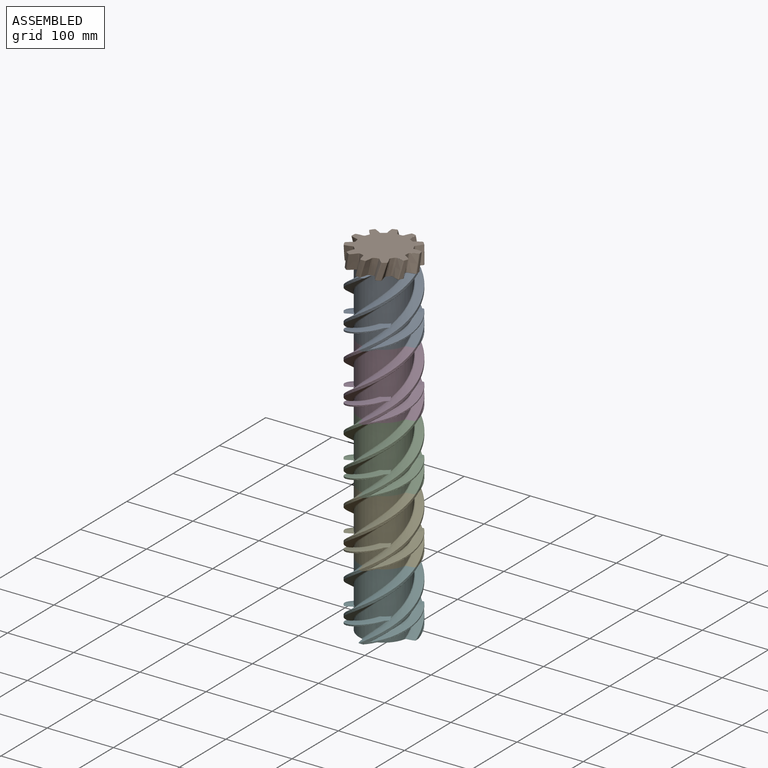
[diagram: assembled view]
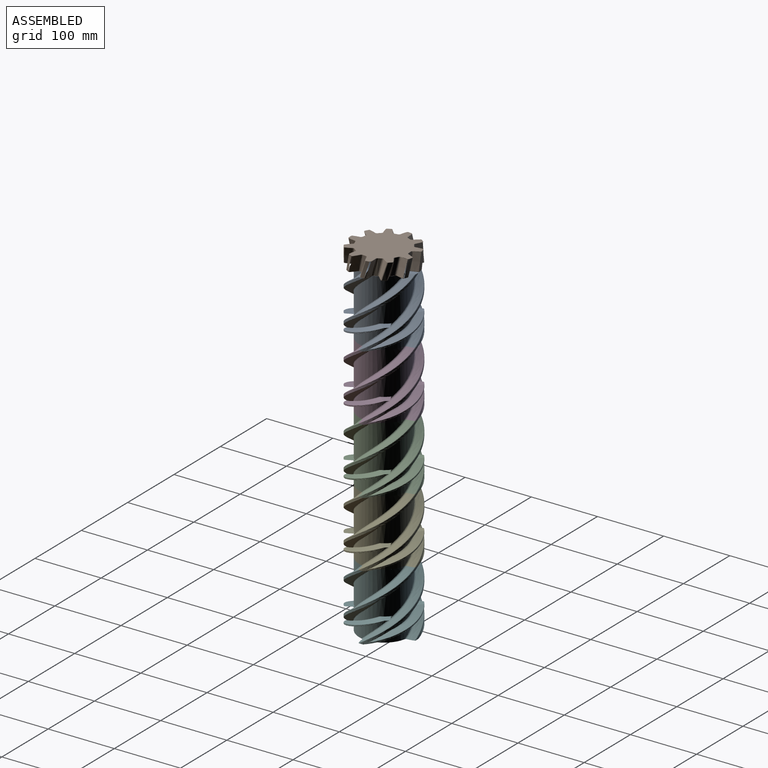
[diagram: assembled view, second angle]
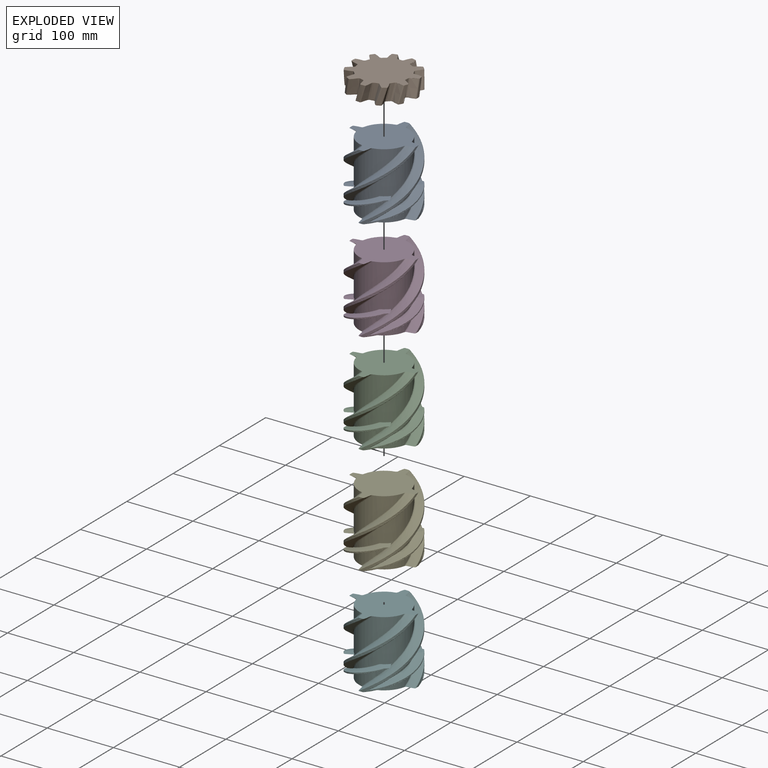
[diagram: exploded view]
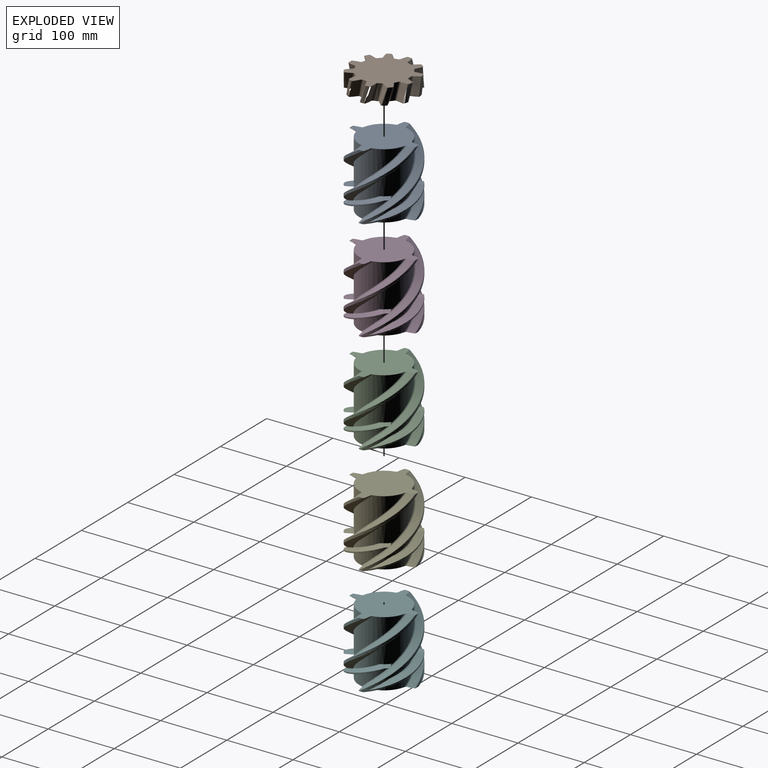
[diagram: exploded view, second angle]
ASSEMBLY  parts=6 mates=5
PART A: 134 faces, bbox 101.2x101.2x100 mm
  f0: cylinder r=2.74mm len=0.21mm, axis (0,0,-1), area 0mm2, adj f32,f69,f125
  f1: cylinder r=2.74mm len=11.01mm, axis (0,0,-1), area 2.3mm2, adj f33,f34,f71,f125
  f2: cylinder r=2.74mm len=11.01mm, axis (0,0,-1), area 2.3mm2, adj f3,f4,f96,f128
  f3: cylinder r=37.5mm len=21.66mm, axis (0,0,-1), area 138.1mm2, adj f2,f96,f128
  f4: cylinder r=37.5mm len=25mm, axis (0,0,-1), area 239.6mm2, adj f2,f31,f96,f128
  f5: bspline ~100.67x100mm, area 494.9mm2, adj f68,f92,f94,f133
  f6: bspline ~16.58x10mm, area 0.7mm2, adj f69,f93,f126,f127,f130,f133
  f7: cylinder r=2.74mm len=0.21mm, axis (0,0,-1), area 0mm2, adj f11,f69,f116
  f8: cylinder r=2.74mm len=11.01mm, axis (0,0,-1), area 2.3mm2, adj f10,f12,f97,f116
  f9: cylinder r=2.74mm len=11.01mm, axis (0,0,-1), area 2.3mm2, adj f39,f40,f89,f119
  f10: cylinder r=37.5mm len=25mm, axis (0,0,-1), area 239.6mm2, adj f8,f42,f97,f116
  f11: cylinder r=37.5mm len=28.1mm, axis (0,0,-1), area 376.2mm2, adj f7,f42,f69,f116
  f12: cylinder r=37.5mm len=71.47mm, axis (0,0,-1), area 1386.2mm2, adj f8,f30,f38,f89,f97,f116,f119,f122
  f13: bspline ~100.67x100mm, area 494.9mm2, adj f68,f85,f87,f124
  f14: bspline ~16.58x10mm, area 0.7mm2, adj f69,f86,f117,f118,f121,f124
  f15: cylinder r=2.74mm len=0.21mm, axis (0,0,-1), area 0mm2, adj f45,f69,f107
  f16: cylinder r=2.74mm len=11.01mm, axis (0,0,-1), area 2.3mm2, adj f46,f48,f90,f107
  f17: cylinder r=2.74mm len=11.01mm, axis (0,0,-1), area 2.3mm2, adj f18,f19,f83,f110
  f18: cylinder r=37.5mm len=21.66mm, axis (0,0,-1), area 138.1mm2, adj f17,f83,f110
  f19: cylinder r=37.5mm len=25mm, axis (0,0,-1), area 239.6mm2, adj f17,f44,f83,f110
  f20: bspline ~100.67x100mm, area 494.9mm2, adj f68,f79,f81,f115
  f21: bspline ~16.58x10mm, area 0.7mm2, adj f69,f80,f108,f109,f112,f115
  f22: cylinder r=2.74mm len=0.21mm, axis (0,0,-1), area 0mm2, adj f52,f69,f98
  f23: cylinder r=2.74mm len=11.01mm, axis (0,0,-1), area 2.3mm2, adj f53,f54,f77,f98
  f24: cylinder r=2.74mm len=11.01mm, axis (0,0,-1), area 2.3mm2, adj f25,f26,f70,f103
  f25: cylinder r=37.5mm len=21.66mm, axis (0,0,-1), area 138.1mm2, adj f24,f70,f103
  f26: cylinder r=37.5mm len=25mm, axis (0,0,-1), area 239.6mm2, adj f24,f51,f70,f103
  f27: bspline ~100.67x100mm, area 494.9mm2, adj f68,f73,f75,f106
  f28: bspline ~16.58x10mm, area 0.7mm2, adj f69,f74,f99,f100,f102,f106
  f29: cylinder r=2.74mm len=36.1mm, axis (0,0,-1), area 7.6mm2, adj f34,f35,f71,f96
  f30: cylinder r=2.74mm len=36.1mm, axis (0,0,-1), area 7.6mm2, adj f12,f41,f89,f97
  f31: cylinder r=2.74mm len=18.14mm, axis (0,0,-1), area 3.8mm2, adj f4,f34,f96,f128
  f32: cylinder r=37.5mm len=28.1mm, axis (0,0,-1), area 376.2mm2, adj f0,f36,f69,f125
  f33: cylinder r=37.5mm len=25mm, axis (0,0,-1), area 239.6mm2, adj f1,f36,f71,f125
  f34: cylinder r=37.5mm len=71.47mm, axis (0,0,-1), area 1386.2mm2, adj f1,f29,f31,f71,f96,f125,f128,f131
  f35: cylinder r=37.5mm len=50mm, axis (0,0,-1), area 596mm2, adj f29,f63,f71,f96
  f36: cylinder r=2.74mm len=17.96mm, axis (0,0,-1), area 3.8mm2, adj f32,f33,f69,f125
  f37: cylinder r=2.74mm len=36.1mm, axis (0,0,-1), area 7.6mm2, adj f47,f48,f83,f90
  f38: cylinder r=2.74mm len=18.14mm, axis (0,0,-1), area 3.8mm2, adj f12,f39,f89,f119
  f39: cylinder r=37.5mm len=25mm, axis (0,0,-1), area 239.6mm2, adj f9,f38,f89,f119
  f40: cylinder r=37.5mm len=21.66mm, axis (0,0,-1), area 138.1mm2, adj f9,f89,f119
  f41: cylinder r=37.5mm len=50mm, axis (0,0,-1), area 596mm2, adj f30,f60,f89,f97
  f42: cylinder r=2.74mm len=17.96mm, axis (0,0,-1), area 3.8mm2, adj f10,f11,f69,f116
  f43: cylinder r=2.74mm len=36.1mm, axis (0,0,-1), area 7.6mm2, adj f54,f55,f70,f77
  f44: cylinder r=2.74mm len=18.14mm, axis (0,0,-1), area 3.8mm2, adj f19,f48,f83,f110
  f45: cylinder r=37.5mm len=28.1mm, axis (0,0,-1), area 376.2mm2, adj f15,f49,f69,f107
  f46: cylinder r=37.5mm len=25mm, axis (0,0,-1), area 239.6mm2, adj f16,f49,f90,f107
  f47: cylinder r=37.5mm len=50mm, axis (0,0,-1), area 596mm2, adj f37,f57,f83,f90
  f48: cylinder r=37.5mm len=71.47mm, axis (0,0,-1), area 1386.2mm2, adj f16,f37,f44,f83,f90,f107,f110,f113
  f49: cylinder r=2.74mm len=17.96mm, axis (0,0,-1), area 3.8mm2, adj f45,f46,f69,f107
  f50: cylinder r=2.74mm len=0.21mm, axis (0,0,-1), area 0mm2, adj f61,f68,f97
  f51: cylinder r=2.74mm len=18.14mm, axis (0,0,-1), area 3.8mm2, adj f26,f54,f70,f103
  f52: cylinder r=37.5mm len=28.1mm, axis (0,0,-1), area 376.2mm2, adj f22,f62,f69,f98
  f53: cylinder r=37.5mm len=25mm, axis (0,0,-1), area 239.6mm2, adj f23,f62,f77,f98
  f54: cylinder r=37.5mm len=71.47mm, axis (0,0,-1), area 1386.2mm2, adj f23,f43,f51,f70,f77,f98,f103,f104
  f55: cylinder r=37.5mm len=50mm, axis (0,0,-1), area 596mm2, adj f43,f66,f70,f77
  f56: cylinder r=2.74mm len=0.21mm, axis (0,0,-1), area 0mm2, adj f67,f68,f77
  f57: cylinder r=2.74mm len=35.92mm, axis (0,0,-1), area 7.6mm2, adj f47,f58,f68,f90
  f58: cylinder r=37.5mm len=35.74mm, axis (0,0,-1), area 753.6mm2, adj f57,f59,f68,f90
  f59: cylinder r=2.74mm len=0.21mm, axis (0,0,-1), area 0mm2, adj f58,f68,f90
  f60: cylinder r=2.74mm len=35.92mm, axis (0,0,-1), area 7.6mm2, adj f41,f61,f68,f97
  f61: cylinder r=37.5mm len=35.74mm, axis (0,0,-1), area 753.6mm2, adj f50,f60,f68,f97
  f62: cylinder r=2.74mm len=17.96mm, axis (0,0,-1), area 3.8mm2, adj f52,f53,f69,f98
  f63: cylinder r=2.74mm len=35.92mm, axis (0,0,-1), area 7.6mm2, adj f35,f64,f68,f71
  f64: cylinder r=37.5mm len=35.74mm, axis (0,0,-1), area 753.6mm2, adj f63,f65,f68,f71
  f65: cylinder r=2.74mm len=0.21mm, axis (0,0,-1), area 0mm2, adj f64,f68,f71
  f66: cylinder r=2.74mm len=35.92mm, axis (0,0,-1), area 7.6mm2, adj f55,f67,f68,f77
  f67: cylinder r=37.5mm len=35.74mm, axis (0,0,-1), area 753.6mm2, adj f56,f66,f68,f77
  f68: plane 100.04x100.04mm, normal (0,0,1), area 4964.1mm2, adj f5,f13,f20,f27,f50,f56,f57,f58
  f69: plane 100.04x100.04mm, normal (0,0,-1), area 4964.1mm2, adj f0,f6,f7,f11,f14,f15,f21,f22
  f70: bspline ~89.87x74.3mm, area 354.8mm2, adj f24,f25,f26,f43,f51,f54,f55,f68
  f71: bspline ~100x78.19mm, area 401.5mm2, adj f1,f29,f33,f34,f35,f63,f64,f65
  f72: bspline ~100x98.33mm, area 1730.6mm2, adj f68,f69,f71,f73
  f73: bspline ~100.38x100mm, area 231.8mm2, adj f27,f68,f69,f72,f106
  f74: bspline ~20.34x10mm, area 8.1mm2, adj f28,f69,f106
  f75: bspline ~100.38x100mm, area 221.4mm2, adj f27,f68,f76,f102,f106
  f76: bspline ~96.93x94.64mm, area 1597.1mm2, adj f68,f70,f75,f101
  f77: bspline ~100x78.19mm, area 401.5mm2, adj f23,f43,f53,f54,f55,f56,f66,f67
  f78: bspline ~100x98.33mm, area 1730.6mm2, adj f68,f69,f77,f79
  f79: bspline ~100.38x100mm, area 231.8mm2, adj f20,f68,f69,f78,f115
  f80: bspline ~20.34x10mm, area 8.1mm2, adj f21,f69,f115
  f81: bspline ~100.38x100mm, area 221.4mm2, adj f20,f68,f82,f112,f115
  f82: bspline ~96.93x94.64mm, area 1597.1mm2, adj f68,f81,f83,f111
  f83: bspline ~89.87x74.3mm, area 354.8mm2, adj f17,f18,f19,f37,f44,f47,f48,f68
  f84: bspline ~100x98.33mm, area 1730.6mm2, adj f68,f69,f85,f90
  f85: bspline ~100.38x100mm, area 231.8mm2, adj f13,f68,f69,f84,f124
  f86: bspline ~20.34x10mm, area 8.1mm2, adj f14,f69,f124
  f87: bspline ~100.38x100mm, area 221.4mm2, adj f13,f68,f88,f121,f124
  f88: bspline ~96.93x94.64mm, area 1597.1mm2, adj f68,f87,f89,f120
  f89: bspline ~89.87x74.3mm, area 354.8mm2, adj f9,f12,f30,f38,f39,f40,f41,f68
  f90: bspline ~100x78.19mm, area 401.5mm2, adj f16,f37,f46,f47,f48,f57,f58,f59
  f91: bspline ~100x98.82mm, area 1730.6mm2, adj f68,f69,f92,f97
  f92: bspline ~100.38x100mm, area 231.8mm2, adj f5,f68,f69,f91,f133
  f93: bspline ~20.34x10mm, area 8.1mm2, adj f6,f69,f133
  f94: bspline ~100.38x100mm, area 221.4mm2, adj f5,f68,f95,f130,f133
  f95: bspline ~100x98.82mm, area 1597.1mm2, adj f68,f94,f96,f129
  f96: bspline ~89.87x74.3mm, area 354.8mm2, adj f2,f3,f4,f29,f31,f34,f35,f68
  f97: bspline ~100x78.19mm, area 401.5mm2, adj f8,f10,f12,f30,f41,f50,f60,f61
  f98: bspline ~68.14x35.74mm, area 203.2mm2, adj f22,f23,f52,f53,f54,f62,f69,f104
  f99: bspline ~87.69x48.05mm, area 113.5mm2, adj f28,f69,f100,f104,f105
  f100: bspline ~87.53x52.95mm, area 171.3mm2, adj f28,f99,f102,f104
  f101: bspline ~81.69x56.13mm, area 827.5mm2, adj f76,f102,f103,f104
  f102: bspline ~84.1x54.71mm, area 99mm2, adj f28,f75,f100,f101,f104
  f103: bspline ~54.36x25.61mm, area 138.2mm2, adj f24,f25,f26,f51,f54,f70,f101,f104
  f104: plane 17.63x17.54mm, normal (0,0,1), area 136.5mm2, adj f54,f98,f99,f100,f101,f102,f103,f105
  f105: bspline ~86.71x45.77mm, area 1053.7mm2, adj f69,f98,f99,f104
  f106: bspline ~20.92x6.25mm, area 0.7mm2, adj f27,f28,f69,f73,f74,f75
  f107: bspline ~68.14x35.74mm, area 203.2mm2, adj f15,f16,f45,f46,f48,f49,f69,f113
  f108: bspline ~83.82x47.47mm, area 113.5mm2, adj f21,f69,f109,f113,f114
  f109: bspline ~87.53x52.95mm, area 171.3mm2, adj f21,f108,f112,f113
  f110: bspline ~54.36x25.61mm, area 138.2mm2, adj f17,f18,f19,f44,f48,f83,f111,f113
  f111: bspline ~81.69x56.13mm, area 827.5mm2, adj f82,f110,f112,f113
  f112: bspline ~78.63x43.8mm, area 99mm2, adj f21,f81,f109,f111,f113
  f113: plane 17.63x17.54mm, normal (0,0,1), area 136.6mm2, adj f48,f107,f108,f109,f110,f111,f112,f114
  f114: bspline ~82.97x45.12mm, area 1053.7mm2, adj f69,f107,f108,f113
  f115: bspline ~20.92x6.25mm, area 0.7mm2, adj f20,f21,f69,f79,f80,f81
  f116: bspline ~68.14x35.74mm, area 203.2mm2, adj f7,f8,f10,f11,f12,f42,f69,f122
  f117: bspline ~87.69x48.05mm, area 113.5mm2, adj f14,f69,f118,f122,f123
  f118: bspline ~87.53x52.95mm, area 171.3mm2, adj f14,f117,f121,f122
  f119: bspline ~54.36x25.61mm, area 138.2mm2, adj f9,f12,f38,f39,f40,f89,f120,f122
  f120: bspline ~81.69x56.13mm, area 827.5mm2, adj f88,f119,f121,f122
  f121: bspline ~84.1x54.71mm, area 99mm2, adj f14,f87,f118,f120,f122
  f122: plane 17.63x17.54mm, normal (0,0,1), area 136.5mm2, adj f12,f116,f117,f118,f119,f120,f121,f123
  f123: bspline ~86.71x45.77mm, area 1053.7mm2, adj f69,f116,f117,f122
  f124: bspline ~20.92x6.25mm, area 0.7mm2, adj f13,f14,f69,f85,f86,f87
  f125: bspline ~68.14x35.74mm, area 203.2mm2, adj f0,f1,f32,f33,f34,f36,f69,f131
  f126: bspline ~87.69x48.05mm, area 113.5mm2, adj f6,f69,f127,f131,f132
  f127: bspline ~87.53x52.95mm, area 171.3mm2, adj f6,f126,f130,f131
  f128: bspline ~54.36x25.61mm, area 138.2mm2, adj f2,f3,f4,f31,f34,f96,f129,f131
  f129: bspline ~81.69x56.13mm, area 827.5mm2, adj f95,f128,f130,f131
  f130: bspline ~84.1x54.71mm, area 99mm2, adj f6,f94,f127,f129,f131
  f131: plane 17.63x17.54mm, normal (0,0,1), area 136.5mm2, adj f34,f125,f126,f127,f128,f129,f130,f132
  f132: bspline ~86.71x45.77mm, area 1053.7mm2, adj f69,f125,f126,f131
  f133: bspline ~20.92x6.25mm, area 0.7mm2, adj f5,f6,f69,f92,f93,f94
PART B: 266 faces, bbox 29.4x100.3x100.7 mm
  f0: plane 98.48x98.22mm, normal (-1,0,0), area 5690.7mm2, adj f90,f91,f92,f93,f94,f95,f96,f97
  f1: plane 98.52x98.15mm, normal (1,0,0), area 5690.8mm2, adj f178,f179,f180,f181,f182,f183,f184,f185
  f2: bspline ~29.41x14.8mm, area 259.4mm2, adj f3,f89,f176,f262,f264,f265
  f3: bspline ~29.41x9.67mm, area 46.2mm2, adj f2,f4,f172,f174,f176,f262
  f4: bspline ~29.41x11.76mm, area 120.9mm2, adj f3,f5,f170,f172,f260,f262
  f5: bspline ~29.41x8.07mm, area 46.2mm2, adj f4,f6,f170,f256,f258,f260
  f6: bspline ~29.41x15.06mm, area 253.6mm2, adj f5,f7,f166,f168,f170,f256
  f7: bspline ~29.41x8.12mm, area 77.8mm2, adj f6,f8,f164,f166,f254,f256
  f8: bspline ~29.41x9.2mm, area 115.8mm2, adj f7,f9,f162,f164,f252,f254
  f9: bspline ~29.41x7.11mm, area 77.8mm2, adj f8,f10,f160,f162,f250,f252
  f10: bspline ~29.41x14.28mm, area 259.5mm2, adj f9,f11,f160,f246,f248,f250
  f11: bspline ~29.41x9.39mm, area 46.2mm2, adj f10,f12,f156,f158,f160,f246
  f12: bspline ~29.41x13.24mm, area 120.9mm2, adj f11,f13,f154,f156,f244,f246
  f13: bspline ~29.41x10.51mm, area 46.2mm2, adj f12,f14,f154,f240,f242,f244
  f14: bspline ~29.41x13.72mm, area 253.6mm2, adj f13,f15,f150,f152,f154,f240
  f15: bspline ~29.41x9.69mm, area 77.8mm2, adj f14,f16,f148,f150,f238,f240
  f16: bspline ~29.41x11.74mm, area 115.8mm2, adj f15,f17,f146,f148,f236,f238
  f17: bspline ~29.41x9.49mm, area 77.8mm2, adj f16,f18,f144,f146,f234,f236
  f18: bspline ~29.41x12.05mm, area 259.5mm2, adj f17,f19,f144,f230,f232,f234
  f19: bspline ~29.41x10.86mm, area 46.2mm2, adj f18,f20,f140,f142,f144,f230
  f20: bspline ~29.41x14.1mm, area 120.9mm2, adj f19,f21,f138,f140,f228,f230
  f21: bspline ~29.41x10.33mm, area 46.2mm2, adj f20,f22,f138,f224,f226,f228
  f22: bspline ~29.41x12.89mm, area 253.6mm2, adj f21,f23,f134,f136,f138,f224
  f23: bspline ~29.41x8.19mm, area 77.8mm2, adj f22,f24,f132,f134,f222,f224
  f24: bspline ~29.41x10.55mm, area 115.8mm2, adj f23,f25,f130,f132,f220,f222
  f25: bspline ~29.41x9.05mm, area 77.8mm2, adj f24,f26,f128,f130,f218,f220
  f26: bspline ~29.41x15.13mm, area 259.4mm2, adj f25,f27,f128,f214,f216,f218
  f27: bspline ~29.41x8.87mm, area 46.2mm2, adj f26,f28,f124,f126,f128,f214
  f28: bspline ~29.41x10.48mm, area 120.9mm2, adj f27,f29,f122,f124,f212,f214
  f29: bspline ~29.41x8.42mm, area 46.2mm2, adj f28,f30,f122,f208,f210,f212
  f30: bspline ~29.41x15.18mm, area 259.4mm2, adj f29,f31,f118,f120,f122,f208
  f31: bspline ~29.41x8.79mm, area 77.8mm2, adj f30,f32,f116,f118,f206,f208
  f32: bspline ~29.41x10.16mm, area 115.8mm2, adj f31,f33,f114,f116,f204,f206
  f33: bspline ~29.41x7.84mm, area 77.8mm2, adj f32,f34,f112,f114,f202,f204
  f34: bspline ~29.41x13.41mm, area 259.5mm2, adj f33,f35,f112,f198,f200,f202
  f35: bspline ~29.41x10.08mm, area 46.2mm2, adj f34,f36,f108,f110,f112,f198
  f36: bspline ~29.41x13.89mm, area 120.9mm2, adj f35,f37,f106,f108,f196,f198
  f37: bspline ~29.41x10.8mm, area 46.2mm2, adj f36,f38,f106,f192,f194,f196
  f38: bspline ~29.41x12.65mm, area 253.6mm2, adj f37,f39,f102,f104,f106,f192
  f39: bspline ~29.41x9.61mm, area 77.8mm2, adj f38,f40,f100,f102,f190,f192
  f40: bspline ~29.41x11.8mm, area 115.8mm2, adj f39,f41,f98,f100,f188,f190
  f41: bspline ~29.41x9.68mm, area 77.8mm2, adj f40,f42,f96,f98,f186,f188
  f42: bspline ~29.41x13.24mm, area 259.5mm2, adj f41,f43,f96,f182,f184,f186
  f43: bspline ~29.41x10.68mm, area 46.2mm2, adj f42,f44,f92,f94,f96,f182
  f44: bspline ~29.41x13.59mm, area 120.9mm2, adj f43,f45,f90,f92,f180,f182
  f45: bspline ~29.41x9.75mm, area 46.2mm2, adj f44,f46,f90,f178,f179,f180
  f46: bspline ~29.41x13.9mm, area 253.6mm2, adj f45,f47,f90,f91,f93,f179
  f47: bspline ~29.41x7.48mm, area 77.8mm2, adj f46,f48,f93,f95,f179,f181
  f48: bspline ~29.41x9.69mm, area 115.8mm2, adj f47,f49,f95,f97,f181,f183
  f49: bspline ~29.41x8.46mm, area 77.8mm2, adj f48,f50,f97,f99,f183,f185
  f50: bspline ~29.41x15.15mm, area 259.4mm2, adj f49,f51,f99,f185,f187,f189
  f51: bspline ~29.41x7.89mm, area 46.2mm2, adj f50,f52,f99,f101,f103,f189
  f52: bspline ~29.41x11.17mm, area 120.9mm2, adj f51,f53,f103,f105,f189,f191
  f53: bspline ~29.41x9.31mm, area 46.2mm2, adj f52,f54,f105,f191,f193,f195
  f54: bspline ~29.41x14.99mm, area 259.4mm2, adj f53,f55,f105,f107,f109,f195
  f55: bspline ~29.41x9.28mm, area 77.8mm2, adj f54,f56,f109,f111,f195,f197
  f56: bspline ~29.41x10.91mm, area 115.8mm2, adj f55,f57,f111,f113,f197,f199
  f57: bspline ~29.41x8.55mm, area 77.8mm2, adj f56,f58,f113,f115,f199,f201
  f58: bspline ~29.41x12.26mm, area 259.5mm2, adj f57,f59,f115,f201,f203,f205
  f59: bspline ~29.41x10.55mm, area 46.2mm2, adj f58,f60,f115,f117,f119,f205
  f60: bspline ~29.41x14.25mm, area 120.9mm2, adj f59,f61,f119,f121,f205,f207
  f61: bspline ~29.41x10.86mm, area 46.2mm2, adj f60,f62,f121,f207,f209,f211
  f62: bspline ~29.41x11.33mm, area 253.6mm2, adj f61,f63,f121,f123,f125,f211
  f63: bspline ~29.41x9.32mm, area 77.8mm2, adj f62,f64,f125,f127,f211,f213
  f64: bspline ~29.41x11.61mm, area 115.8mm2, adj f63,f65,f127,f129,f213,f215
  f65: bspline ~29.41x9.66mm, area 77.8mm2, adj f64,f66,f129,f131,f215,f217
  f66: bspline ~29.41x14.16mm, area 259.4mm2, adj f65,f67,f131,f217,f219,f221
  f67: bspline ~29.41x10.28mm, area 46.2mm2, adj f66,f68,f131,f133,f135,f221
  f68: bspline ~29.41x12.81mm, area 120.9mm2, adj f67,f69,f135,f137,f221,f223
  f69: bspline ~29.41x8.97mm, area 46.2mm2, adj f68,f70,f137,f223,f225,f227
  f70: bspline ~29.41x14.62mm, area 253.6mm2, adj f69,f71,f137,f139,f141,f227
  f71: bspline ~29.41x7.28mm, area 77.8mm2, adj f70,f72,f141,f143,f227,f229
  f72: bspline ~29.41x8.63mm, area 115.8mm2, adj f71,f73,f143,f145,f229,f231
  f73: bspline ~29.41x7.71mm, area 77.8mm2, adj f72,f74,f145,f147,f231,f233
  f74: bspline ~29.41x14.87mm, area 259.5mm2, adj f73,f75,f147,f233,f235,f237
  f75: bspline ~29.41x8.54mm, area 46.2mm2, adj f74,f76,f147,f149,f151,f237
  f76: bspline ~29.41x12.33mm, area 120.9mm2, adj f75,f77,f151,f153,f237,f239
  f77: bspline ~29.41x10.01mm, area 46.2mm2, adj f76,f78,f153,f239,f241,f243
  f78: bspline ~29.41x14.5mm, area 259.4mm2, adj f77,f79,f153,f155,f157,f243
  f79: bspline ~29.41x9.59mm, area 77.8mm2, adj f78,f80,f157,f159,f243,f245
  f80: bspline ~29.41x11.44mm, area 115.8mm2, adj f79,f81,f159,f161,f245,f247
  f81: bspline ~29.41x9.12mm, area 77.8mm2, adj f80,f82,f161,f163,f247,f249
  f82: bspline ~29.41x11.07mm, area 259.5mm2, adj f81,f83,f163,f249,f251,f253
  f83: bspline ~29.41x10.81mm, area 46.2mm2, adj f82,f84,f163,f165,f167,f253
  f84: bspline ~29.41x14.32mm, area 120.9mm2, adj f83,f85,f167,f169,f253,f255
  f85: bspline ~29.41x10.71mm, area 46.2mm2, adj f84,f86,f169,f255,f257,f259
  f86: bspline ~29.41x11.61mm, area 253.6mm2, adj f85,f87,f169,f171,f173,f259
  f87: bspline ~29.41x8.85mm, area 77.8mm2, adj f86,f88,f173,f175,f259,f261
  f88: bspline ~29.41x11.19mm, area 115.8mm2, adj f87,f89,f175,f177,f261,f263
  f89: bspline ~29.41x9.45mm, area 77.8mm2, adj f2,f88,f176,f177,f263,f265
  f90: bspline ~1.58x1.5mm, area 1.2mm2, adj f0,f44,f45,f46,f91,f92
  f91: bspline ~10.41x0.9mm, area 3.8mm2, adj f0,f46,f90,f93
  f92: bspline ~6.27x1.96mm, area 4mm2, adj f0,f43,f44,f90,f94
  f93: bspline ~3.39x2.11mm, area 2.5mm2, adj f0,f46,f47,f91,f95
  f94: bspline ~2.19x0.96mm, area 1.4mm2, adj f0,f43,f92,f96
  f95: bspline ~5.48x3.44mm, area 3.8mm2, adj f0,f47,f48,f93,f97
  f96: bspline ~12.46x6.16mm, area 9.5mm2, adj f0,f41,f42,f43,f94,f98
  f97: bspline ~3.74x1.19mm, area 2.9mm2, adj f0,f48,f49,f95,f99
  f98: bspline ~3.07x2.39mm, area 2.9mm2, adj f0,f40,f41,f96,f100
  f99: bspline ~10.89x7.41mm, area 9.5mm2, adj f0,f49,f50,f51,f97,f101
  f100: bspline ~6.06x0.81mm, area 3.8mm2, adj f0,f39,f40,f98,f102
  f101: bspline ~2.02x1.28mm, area 1.4mm2, adj f0,f51,f99,f103
  f102: bspline ~3.38x2.1mm, area 2.5mm2, adj f0,f38,f39,f100,f104
  f103: bspline ~4.91x4.75mm, area 4mm2, adj f0,f51,f52,f101,f105
  f104: bspline ~11.75x7.25mm, area 3.8mm2, adj f0,f38,f102,f106
  f105: bspline ~1.91x0.95mm, area 1.2mm2, adj f0,f52,f53,f54,f103,f107
  f106: bspline ~1.95x0.85mm, area 1.2mm2, adj f0,f36,f37,f38,f104,f108
  f107: bspline ~10.7x7.37mm, area 6.8mm2, adj f0,f54,f105,f109
  f108: bspline ~6.14x2.56mm, area 4mm2, adj f0,f35,f36,f106,f110
  f109: bspline ~3.85x1.16mm, area 2.5mm2, adj f0,f54,f55,f107,f111
  f110: bspline ~1.83x1.62mm, area 1.4mm2, adj f0,f35,f108,f112
  f111: bspline ~5.59x3.22mm, area 3.8mm2, adj f0,f55,f56,f109,f113
  f112: bspline ~13.35x2.54mm, area 9.5mm2, adj f0,f33,f34,f35,f110,f114
  f113: bspline ~3.24x2.11mm, area 2.9mm2, adj f0,f56,f57,f111,f115
  f114: bspline ~3.47x1.78mm, area 2.9mm2, adj f0,f32,f33,f112,f116
  f115: bspline ~13.46x1.02mm, area 9.5mm2, adj f0,f57,f58,f59,f113,f117
  f116: bspline ~5.2x3.91mm, area 3.8mm2, adj f0,f31,f32,f114,f118
  f117: bspline ~1.96x1.46mm, area 1.4mm2, adj f0,f59,f115,f119
  f118: bspline ~3.85x1.17mm, area 2.5mm2, adj f0,f30,f31,f116,f120
  f119: bspline ~6.31x1.71mm, area 4mm2, adj f0,f59,f60,f117,f121
  f120: bspline ~11.53x5.85mm, area 6.8mm2, adj f0,f30,f118,f122
  f121: bspline ~1.88x0.99mm, area 1.2mm2, adj f0,f60,f61,f62,f119,f123
  f122: bspline ~1.82x1.11mm, area 1.2mm2, adj f0,f28,f29,f30,f120,f124
  f123: bspline ~9.75x4.46mm, area 3.8mm2, adj f0,f62,f121,f125
  f124: bspline ~5.3x4.29mm, area 4mm2, adj f0,f27,f28,f122,f126
  f125: bspline ~3.12x2.48mm, area 2.5mm2, adj f0,f62,f63,f123,f127
  f126: bspline ~2.13x1.09mm, area 1.4mm2, adj f0,f27,f124,f128
  f127: bspline ~6.05x1.06mm, area 3.8mm2, adj f0,f63,f64,f125,f129
  f128: bspline ~9.88x8.79mm, area 9.5mm2, adj f0,f25,f26,f27,f126,f130
  f129: bspline ~3.33x2.05mm, area 2.9mm2, adj f0,f64,f65,f127,f131
  f130: bspline ~3.68x1.44mm, area 2.9mm2, adj f0,f24,f25,f128,f132
  f131: bspline ~11.63x7.79mm, area 9.5mm2, adj f0,f65,f66,f67,f129,f133
  f132: bspline ~5.79x2.7mm, area 3.8mm2, adj f0,f23,f24,f130,f134
  f133: bspline ~2.22x0.84mm, area 1.4mm2, adj f0,f67,f131,f135
  f134: bspline ~3.12x2.48mm, area 2.5mm2, adj f0,f22,f23,f132,f136
  f135: bspline ~6.07x2.8mm, area 4mm2, adj f0,f67,f68,f133,f137
  f136: bspline ~13.36x1.92mm, area 3.8mm2, adj f0,f22,f134,f138
  f137: bspline ~1.63x1.45mm, area 1.2mm2, adj f0,f68,f69,f70,f135,f139
  f138: bspline ~1.68x1.34mm, area 1.2mm2, adj f0,f20,f21,f22,f136,f140
  f139: bspline ~10.3x2.27mm, area 3.8mm2, adj f0,f70,f137,f141
  f140: bspline ~6.35x1.08mm, area 4mm2, adj f0,f19,f20,f138,f142
  f141: bspline ~3.62x1.76mm, area 2.5mm2, adj f0,f70,f71,f139,f143
  f142: bspline ~2.12x1.09mm, area 1.4mm2, adj f0,f19,f140,f144
  f143: bspline ~5.05x4.12mm, area 3.8mm2, adj f0,f71,f72,f141,f145
  f144: bspline ~13.05x4.4mm, area 9.5mm2, adj f0,f17,f18,f19,f142,f146
  f145: bspline ~3.73x1.18mm, area 2.9mm2, adj f0,f72,f73,f143,f147
  f146: bspline ~2.8x2.72mm, area 2.9mm2, adj f0,f16,f17,f144,f148
  f147: bspline ~11.67x5.88mm, area 9.5mm2, adj f0,f73,f74,f75,f145,f149
  f148: bspline ~6.02x1.64mm, area 3.8mm2, adj f0,f15,f16,f146,f150
  f149: bspline ~1.87x1.48mm, area 1.4mm2, adj f0,f75,f147,f151
  f150: bspline ~3.61x1.76mm, area 2.5mm2, adj f0,f14,f15,f148,f152
  f151: bspline ~5.44x4.1mm, area 4mm2, adj f0,f75,f76,f149,f153
  f152: bspline ~8.35x6.92mm, area 3.8mm2, adj f0,f14,f150,f154
  f153: bspline ~1.96x0.81mm, area 1.2mm2, adj f0,f76,f77,f78,f151,f155
  f154: bspline ~1.98x0.72mm, area 1.2mm2, adj f0,f12,f13,f14,f152,f156
  f155: bspline ~9.65x8.74mm, area 6.8mm2, adj f0,f78,f153,f157
  f156: bspline ~5.85x3.36mm, area 4mm2, adj f0,f11,f12,f154,f158
  f157: bspline ~3.77x1.44mm, area 2.5mm2, adj f0,f78,f79,f155,f159
  f158: bspline ~1.76x1.68mm, area 1.4mm2, adj f0,f11,f156,f160
  f159: bspline ~5.86x2.45mm, area 3.8mm2, adj f0,f79,f80,f157,f161
  f160: bspline ~13.04x4.39mm, area 9.5mm2, adj f0,f9,f10,f11,f158,f162
  f161: bspline ~2.99x2.48mm, area 2.9mm2, adj f0,f80,f81,f159,f163
  f162: bspline ~3.64x1.46mm, area 2.9mm2, adj f0,f8,f9,f160,f164
  f163: bspline ~13.36x2.55mm, area 9.5mm2, adj f0,f81,f82,f83,f161,f165
  f164: bspline ~4.71x4.53mm, area 3.8mm2, adj f0,f7,f8,f162,f166
  f165: bspline ~2.04x1.26mm, area 1.4mm2, adj f0,f83,f163,f167
  f166: bspline ~3.77x1.45mm, area 2.5mm2, adj f0,f6,f7,f164,f168
  f167: bspline ~6.35x0.82mm, area 4mm2, adj f0,f83,f84,f165,f169
  f168: bspline ~10.01x3.69mm, area 3.8mm2, adj f0,f6,f166,f170
  f169: bspline ~1.78x1.16mm, area 1.2mm2, adj f0,f84,f85,f86,f167,f171
  f170: bspline ~1.73x1.28mm, area 1.2mm2, adj f0,f4,f5,f6,f168,f172
  f171: bspline ~10.16x3.08mm, area 3.8mm2, adj f0,f86,f169,f173
  f172: bspline ~5.74x3.58mm, area 4mm2, adj f0,f3,f4,f170,f174
  f173: bspline ~2.83x2.83mm, area 2.5mm2, adj f0,f86,f87,f171,f175
  f174: bspline ~2.2x0.92mm, area 1.4mm2, adj f0,f3,f172,f176
  f175: bspline ~5.98x1.9mm, area 3.8mm2, adj f0,f87,f88,f173,f177
  f176: bspline ~10.55x9.26mm, area 9.5mm2, adj f0,f2,f3,f89,f174,f177
  f177: bspline ~3.54x1.73mm, area 2.9mm2, adj f0,f88,f89,f175,f176
  f178: bspline ~1.83x1.82mm, area 1.4mm2, adj f1,f45,f179,f180
  f179: bspline ~13.41x3.17mm, area 9.5mm2, adj f1,f45,f46,f47,f178,f181
  f180: bspline ~6.14x2.86mm, area 4mm2, adj f1,f44,f45,f178,f182
  f181: bspline ~3.7x1.63mm, area 2.9mm2, adj f1,f47,f48,f179,f183
  f182: bspline ~1.9x0.76mm, area 1.2mm2, adj f1,f42,f43,f44,f180,f184
  f183: bspline ~5.12x4.17mm, area 3.8mm2, adj f1,f48,f49,f181,f185
  f184: bspline ~11.45x7.76mm, area 3.8mm2, adj f1,f42,f182,f186
  f185: bspline ~3.82x1.23mm, area 2.5mm2, adj f1,f49,f50,f183,f187
  f186: bspline ~3.43x2.01mm, area 2.5mm2, adj f1,f41,f42,f184,f188
  f187: bspline ~11.74x5.33mm, area 6.8mm2, adj f1,f50,f185,f189
  f188: bspline ~6.14x1.08mm, area 3.8mm2, adj f1,f40,f41,f186,f190
  f189: bspline ~1.7x1.16mm, area 1.2mm2, adj f1,f50,f51,f52,f187,f191
  f190: bspline ~3.01x2.69mm, area 2.9mm2, adj f1,f39,f40,f188,f192
  f191: bspline ~5.53x4.12mm, area 4mm2, adj f1,f52,f53,f189,f193
  f192: bspline ~12.8x5.65mm, area 9.5mm2, adj f1,f37,f38,f39,f190,f194
  f193: bspline ~2.31x1.04mm, area 1.4mm2, adj f1,f53,f191,f195
  f194: bspline ~2.29x1.11mm, area 1.4mm2, adj f1,f37,f192,f196
  f195: bspline ~9.56x9.25mm, area 9.5mm2, adj f1,f53,f54,f55,f193,f197
  f196: bspline ~6.4x1.69mm, area 4mm2, adj f1,f36,f37,f194,f198
  f197: bspline ~3.74x1.68mm, area 2.9mm2, adj f1,f55,f56,f195,f199
  f198: bspline ~1.59x1.38mm, area 1.2mm2, adj f1,f34,f35,f36,f196,f200
  f199: bspline ~5.94x2.47mm, area 3.8mm2, adj f1,f56,f57,f197,f201
  f200: bspline ~10.41x0.79mm, area 3.8mm2, adj f1,f34,f198,f202
  f201: bspline ~3.03x2.56mm, area 2.5mm2, adj f1,f57,f58,f199,f203
  f202: bspline ~3.3x2.19mm, area 2.5mm2, adj f1,f33,f34,f200,f204
  f203: bspline ~10.32x2.1mm, area 3.8mm2, adj f1,f58,f201,f205
  f204: bspline ~5.67x3.25mm, area 3.8mm2, adj f1,f32,f33,f202,f206
  f205: bspline ~1.67x1.22mm, area 1.2mm2, adj f1,f58,f59,f60,f203,f207
  f206: bspline ~3.84x1.4mm, area 2.9mm2, adj f1,f31,f32,f204,f208
  f207: bspline ~6.44x0.8mm, area 4mm2, adj f1,f60,f61,f205,f209
  f208: bspline ~10.64x7.92mm, area 9.5mm2, adj f1,f29,f30,f31,f206,f210
  f209: bspline ~2.19x1.27mm, area 1.4mm2, adj f1,f61,f207,f211
  f210: bspline ~2.22x1.22mm, area 1.4mm2, adj f1,f29,f208,f212
  f211: bspline ~13.31x3.84mm, area 9.5mm2, adj f1,f61,f62,f63,f209,f213
  f212: bspline ~5x4.79mm, area 4mm2, adj f1,f28,f29,f210,f214
  f213: bspline ~3x2.7mm, area 2.9mm2, adj f1,f63,f64,f211,f215
  f214: bspline ~1.81x1mm, area 1.2mm2, adj f1,f26,f27,f28,f212,f216
  f215: bspline ~6.06x1.93mm, area 3.8mm2, adj f1,f64,f65,f213,f217
  f216: bspline ~10.99x6.9mm, area 6.8mm2, adj f1,f26,f214,f218
  f217: bspline ~3.64x1.67mm, area 2.5mm2, adj f1,f65,f66,f215,f219
  f218: bspline ~3.84x1.09mm, area 2.5mm2, adj f1,f25,f26,f216,f220
  f219: bspline ~9.57x8.83mm, area 6.8mm2, adj f1,f66,f217,f221
  f220: bspline ~5.55x3.49mm, area 3.8mm2, adj f1,f24,f25,f218,f222
  f221: bspline ~1.91x0.73mm, area 1.2mm2, adj f1,f66,f67,f68,f219,f223
  f222: bspline ~3.5x1.96mm, area 2.9mm2, adj f1,f23,f24,f220,f224
  f223: bspline ~5.81x3.65mm, area 4mm2, adj f1,f68,f69,f221,f225
  f224: bspline ~13.58x1.38mm, area 9.5mm2, adj f1,f21,f22,f23,f222,f226
  f225: bspline ~1.96x1.63mm, area 1.4mm2, adj f1,f69,f223,f227
  f226: bspline ~1.98x1.67mm, area 1.4mm2, adj f1,f21,f224,f228
  f227: bspline ~12.14x4.81mm, area 9.5mm2, adj f1,f69,f70,f71,f225,f229
  f228: bspline ~6.36x2.01mm, area 4mm2, adj f1,f20,f21,f226,f230
  f229: bspline ~3.83x1.33mm, area 2.9mm2, adj f1,f71,f72,f227,f231
  f230: bspline ~1.86x0.89mm, area 1.2mm2, adj f1,f18,f19,f20,f228,f232
  f231: bspline ~4.77x4.58mm, area 3.8mm2, adj f1,f72,f73,f229,f233
  f232: bspline ~9.58x4.88mm, area 3.8mm2, adj f1,f18,f230,f234
  f233: bspline ~3.72x1.52mm, area 2.5mm2, adj f1,f73,f74,f231,f235
  f234: bspline ~3.16x2.37mm, area 2.5mm2, adj f1,f17,f18,f232,f236
  f235: bspline ~10.12x3.24mm, area 3.8mm2, adj f1,f74,f233,f237
  f236: bspline ~6.14x0.81mm, area 3.8mm2, adj f1,f16,f17,f234,f238
  f237: bspline ~1.62x1.33mm, area 1.2mm2, adj f1,f74,f75,f76,f235,f239
  f238: bspline ~3.29x2.34mm, area 2.9mm2, adj f1,f15,f16,f236,f240
  f239: bspline ~5.94x3.38mm, area 4mm2, adj f1,f76,f77,f237,f241
  f240: bspline ~12.04x7.34mm, area 9.5mm2, adj f1,f13,f14,f15,f238,f242
  f241: bspline ~2.35x0.88mm, area 1.4mm2, adj f1,f77,f239,f243
  f242: bspline ~2.35x0.98mm, area 1.4mm2, adj f1,f13,f240,f244
  f243: bspline ~11.03x8.89mm, area 9.5mm2, adj f1,f77,f78,f79,f241,f245
  f244: bspline ~6.23x2.56mm, area 4mm2, adj f1,f12,f13,f242,f246
  f245: bspline ~3.55x1.99mm, area 2.9mm2, adj f1,f79,f80,f243,f247
  f246: bspline ~1.52x1.48mm, area 1.2mm2, adj f1,f10,f11,f12,f244,f248
  f247: bspline ~6.1x1.65mm, area 3.8mm2, adj f1,f80,f81,f245,f249
  f248: bspline ~10.35x1.8mm, area 3.8mm2, adj f1,f10,f246,f250
  f249: bspline ~2.89x2.73mm, area 2.5mm2, adj f1,f81,f82,f247,f251
  f250: bspline ~3.55x1.84mm, area 2.5mm2, adj f1,f9,f10,f248,f252
  f251: bspline ~10.05x3.53mm, area 3.8mm2, adj f1,f82,f249,f253
  f252: bspline ~5.27x3.96mm, area 3.8mm2, adj f1,f8,f9,f250,f254
  f253: bspline ~1.77x1.05mm, area 1.2mm2, adj f1,f82,f83,f84,f251,f255
  f254: bspline ~3.87x1.15mm, area 2.9mm2, adj f1,f7,f8,f252,f256
  f255: bspline ~6.44x1.12mm, area 4mm2, adj f1,f84,f85,f253,f257
  f256: bspline ~11.51x6.43mm, area 9.5mm2, adj f1,f5,f6,f7,f254,f258
  f257: bspline ~2.09x1.47mm, area 1.4mm2, adj f1,f85,f255,f259
  f258: bspline ~2.09x1.42mm, area 1.4mm2, adj f1,f5,f256,f260
  f259: bspline ~13.54x1.95mm, area 9.5mm2, adj f1,f85,f86,f87,f257,f261
  f260: bspline ~5.35x4.37mm, area 4mm2, adj f1,f4,f5,f258,f262
  f261: bspline ~3.25x2.33mm, area 2.9mm2, adj f1,f87,f88,f259,f263
  f262: bspline ~1.88x0.86mm, area 1.2mm2, adj f1,f2,f3,f4,f260,f264
  f263: bspline ~5.87x2.74mm, area 3.8mm2, adj f1,f88,f89,f261,f265
  f264: bspline ~10.01x8.32mm, area 6.8mm2, adj f1,f2,f262,f265
  f265: bspline ~3.78x1.36mm, area 2.5mm2, adj f1,f2,f89,f263,f264
PART C: same geometry as A
PART D: same geometry as A
PART E: same geometry as A
PART F: same geometry as A
PLACE A t=(0,0,19.44)mm
PLACE B rot(axis=(0.71,0,-0.71),180deg) t=(-1.67,-1.67,164.44)mm
PLACE C t=(0,0,-180.56)mm
PLACE D t=(0,0,-80.56)mm
PLACE E t=(0,0,-280.56)mm
PLACE F t=(0,0,-380.56)mm
MATE fastened C.f3 <-> E.f3  axis (0,0,-1) through (0.44,-2.11,-180.56)mm
MATE fastened A.f3 <-> B.f1  axis (0,0,1) through (0.44,-2.11,119.44)mm
MATE fastened A.f3 <-> D.f3  axis (0,0,-1) through (0.44,-2.11,19.44)mm
MATE fastened D.f3 <-> C.f3  axis (0,0,-1) through (0.44,-2.11,-80.56)mm
MATE fastened E.f3 <-> F.f3  axis (0,0,-1) through (0.44,-2.11,-280.56)mm
